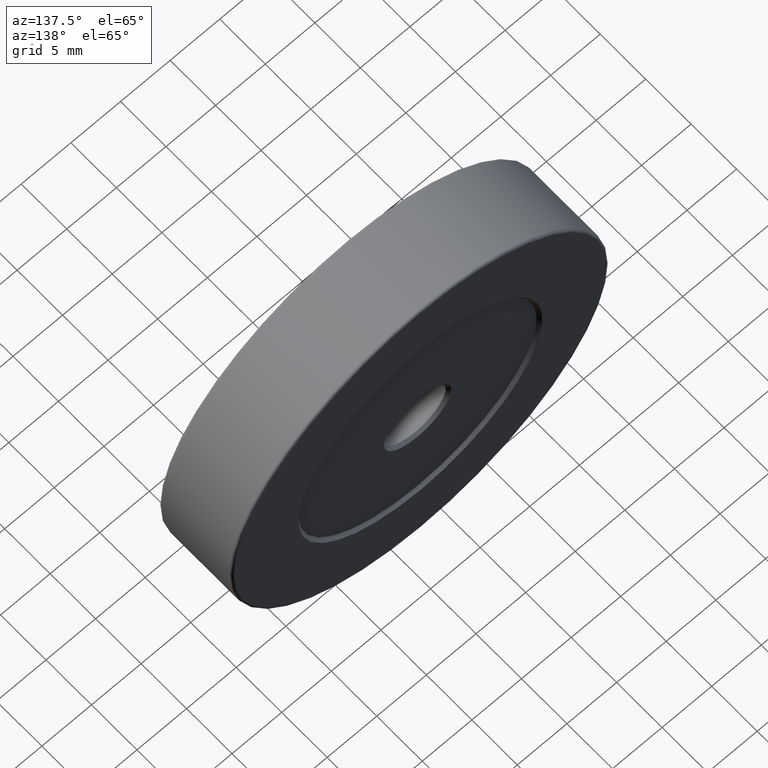
[diagram: clean part render]
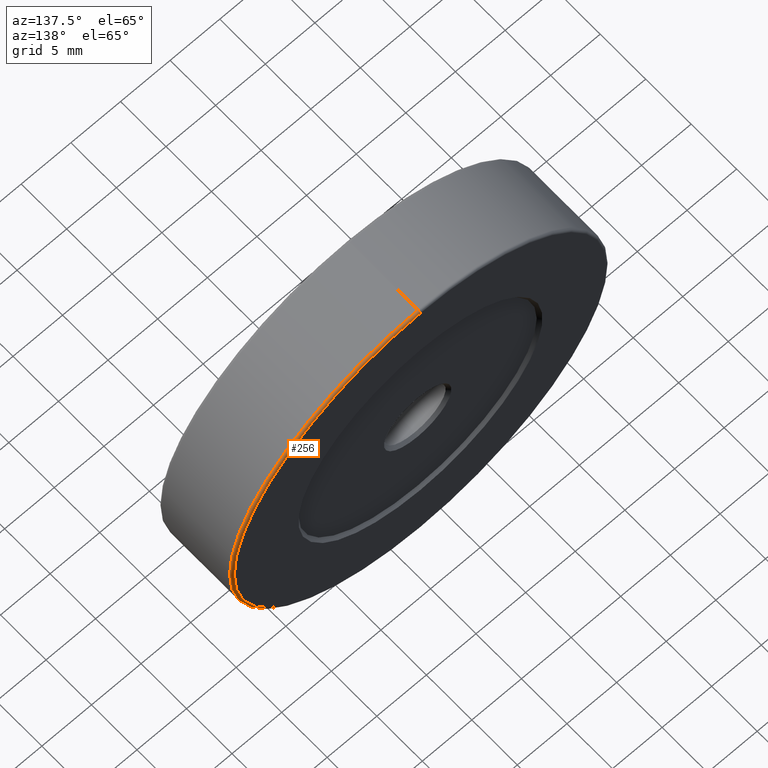
[diagram: same view with one face highlighted and labeled with its STEP entity id]
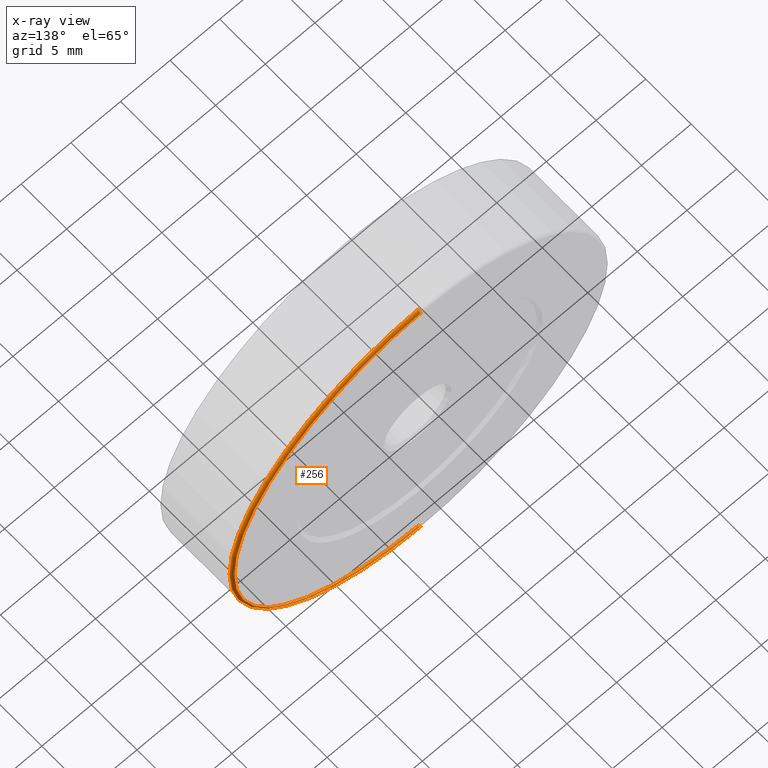
[diagram: x-ray of the same camera — body ghosted, the highlighted face saturated]
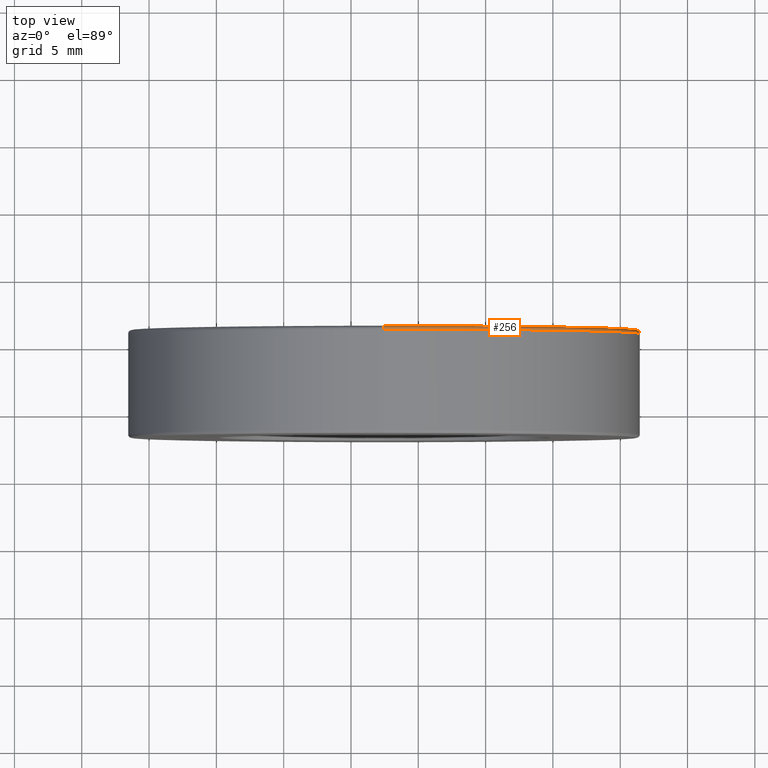
[diagram: same view with one face highlighted and labeled with its STEP entity id]
A machine part, auxiliary view. The second image highlights one B-rep face of the part: STEP entity #256.
The next image is the same camera in x-ray: the body ghosted, the highlighted face saturated — about 0% of this face is hidden behind the body in this view.
A second angle (top view) of the same face is appended — the face is thin or edge-on in the first view.
In plain terms, the highlighted toroidal blend (fillet) surface has major radius 18.75 mm and minor (blend) radius 0.25 mm.
Its self-contained STEP definition (entity closure, byte-faithful):
#7 = CARTESIAN_POINT ( 'NONE',  ( -7.546808913101048510, 0.8564048726972719461, 56.99999999999999289 ) ) ;
#30 = CARTESIAN_POINT ( 'NONE',  ( -7.546808913101048510, 1.106404872697272168, 38.00000000000000000 ) ) ;
#35 = AXIS2_PLACEMENT_3D ( 'NONE', #348, #170, #121 ) ;
#43 = VERTEX_POINT ( 'NONE', #521 ) ;
#64 = AXIS2_PLACEMENT_3D ( 'NONE', #245, #379, #476 ) ;
#72 = ORIENTED_EDGE ( 'NONE', *, *, #145, .F. ) ;
#77 = VERTEX_POINT ( 'NONE', #286 ) ;
#82 = EDGE_LOOP ( 'NONE', ( #588, #543, #113, #72 ) ) ;
#113 = ORIENTED_EDGE ( 'NONE', *, *, #431, .F. ) ;
#121 = DIRECTION ( 'NONE',  ( 0.000000000000000000, 0.000000000000000000, -1.000000000000000000 ) ) ;
#127 = AXIS2_PLACEMENT_3D ( 'NONE', #30, #251, #215 ) ;
#133 = DIRECTION ( 'NONE',  ( -1.000000000000000000, 0.000000000000000000, 0.000000000000000000 ) ) ;
#145 = EDGE_CURVE ( 'NONE', #181, #77, #525, .T. ) ;
#155 = CIRCLE ( 'NONE', #35, 0.2500000000000002220 ) ;
#170 = DIRECTION ( 'NONE',  ( 1.000000000000000000, -0.000000000000000000, 1.224646799147353207E-16 ) ) ;
#181 = VERTEX_POINT ( 'NONE', #7 ) ;
#215 = DIRECTION ( 'NONE',  ( 0.000000000000000000, 0.000000000000000000, 1.000000000000000000 ) ) ;
#245 = CARTESIAN_POINT ( 'NONE',  ( -7.546808913101048510, 0.8564048726972719461, 38.00000000000000000 ) ) ;
#251 = DIRECTION ( 'NONE',  ( 0.000000000000000000, 1.000000000000000000, 0.000000000000000000 ) ) ;
#256 = ADVANCED_FACE ( 'NONE', ( #296 ), #434, .T. ) ;
#267 = AXIS2_PLACEMENT_3D ( 'NONE', #321, #133, #510 ) ;
#286 = CARTESIAN_POINT ( 'NONE',  ( -7.546808913101048510, 1.106404872697272168, 56.74999999999999289 ) ) ;
#296 = FACE_OUTER_BOUND ( 'NONE', #82, .T. ) ;
#321 = CARTESIAN_POINT ( 'NONE',  ( -7.546808913101048510, 0.8564048726972719461, 56.74999999999999289 ) ) ;
#334 = DIRECTION ( 'NONE',  ( 0.000000000000000000, 0.000000000000000000, 1.000000000000000000 ) ) ;
#346 = AXIS2_PLACEMENT_3D ( 'NONE', #389, #587, #334 ) ;
#348 = CARTESIAN_POINT ( 'NONE',  ( -7.546808913101045846, 0.8564048726972719461, 19.25000000000000000 ) ) ;
#379 = DIRECTION ( 'NONE',  ( -0.000000000000000000, -1.000000000000000000, -0.000000000000000000 ) ) ;
#389 = CARTESIAN_POINT ( 'NONE',  ( -7.546808913101048510, 0.8564048726972719461, 38.00000000000000000 ) ) ;
#393 = EDGE_CURVE ( 'NONE', #43, #181, #424, .T. ) ;
#407 = VERTEX_POINT ( 'NONE', #437 ) ;
#422 = EDGE_CURVE ( 'NONE', #43, #407, #155, .T. ) ;
#424 = CIRCLE ( 'NONE', #64, 18.99999999999999645 ) ;
#431 = EDGE_CURVE ( 'NONE', #77, #407, #494, .T. ) ;
#434 = TOROIDAL_SURFACE ( 'NONE', #346, 18.75000000000000000, 0.2500000000000000000 ) ;
#437 = CARTESIAN_POINT ( 'NONE',  ( -7.546808913101045846, 1.106404872697272168, 19.25000000000000000 ) ) ;
#476 = DIRECTION ( 'NONE',  ( 0.000000000000000000, 0.000000000000000000, 1.000000000000000000 ) ) ;
#494 = CIRCLE ( 'NONE', #127, 18.74999999999999645 ) ;
#510 = DIRECTION ( 'NONE',  ( 0.000000000000000000, 0.000000000000000000, 1.000000000000000000 ) ) ;
#521 = CARTESIAN_POINT ( 'NONE',  ( -7.546808913101044958, 0.8564048726972719461, 19.00000000000000000 ) ) ;
#525 = CIRCLE ( 'NONE', #267, 0.2500000000000002220 ) ;
#543 = ORIENTED_EDGE ( 'NONE', *, *, #422, .T. ) ;
#587 = DIRECTION ( 'NONE',  ( 0.000000000000000000, 1.000000000000000000, 0.000000000000000000 ) ) ;
#588 = ORIENTED_EDGE ( 'NONE', *, *, #393, .F. ) ;